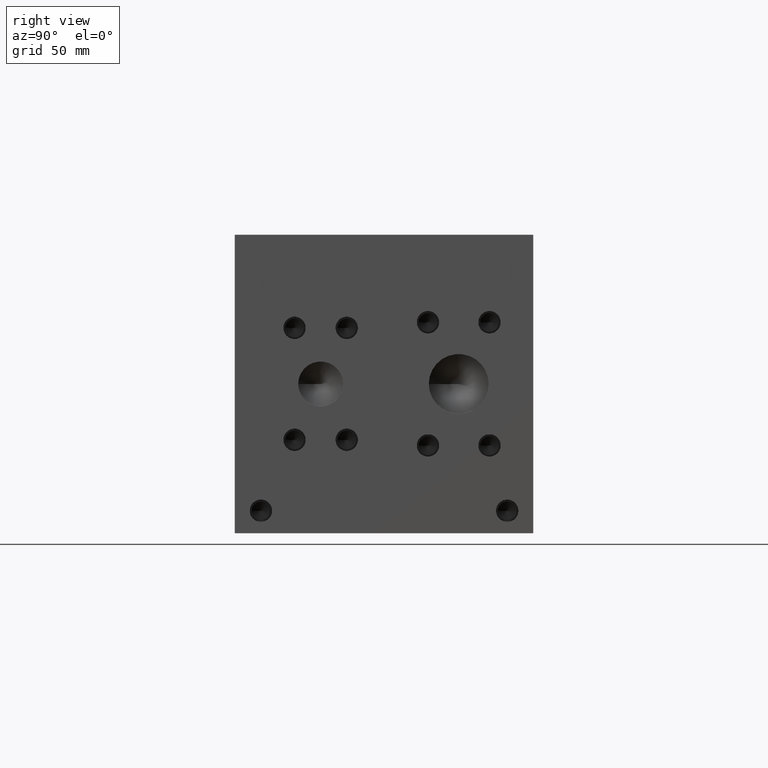
[diagram: clean part render]
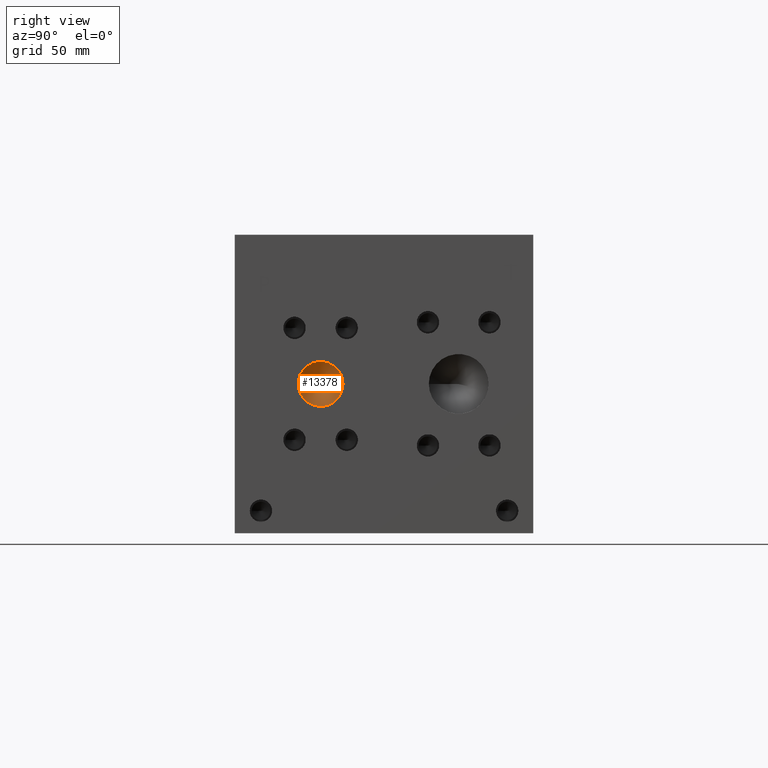
[diagram: same view with one face highlighted and labeled with its STEP entity id]
A machine part, right view. The second image highlights one B-rep face of the part: STEP entity #13378.
In plain terms, the highlighted conical surface has half-angle 60 deg.
Its self-contained STEP definition (entity closure, byte-faithful):
#125=CONICAL_SURFACE('',#14051,4.7625,1.0471975511966);
#287=CIRCLE('',#14052,9.525);
#288=CIRCLE('',#14053,9.525);
#1601=FACE_OUTER_BOUND('',#2395,.T.);
#2395=EDGE_LOOP('',(#11253,#11254,#11255,#11256));
#3698=LINE('',#22392,#4893);
#4893=VECTOR('',#16475,4.7625);
#6322=VERTEX_POINT('',#22388);
#6323=VERTEX_POINT('',#22389);
#6324=VERTEX_POINT('',#22391);
#8084=EDGE_CURVE('',#6322,#6323,#287,.T.);
#8085=EDGE_CURVE('',#6323,#6324,#3698,.T.);
#8086=EDGE_CURVE('',#6323,#6322,#288,.T.);
#11253=ORIENTED_EDGE('',*,*,#8084,.T.);
#11254=ORIENTED_EDGE('',*,*,#8085,.T.);
#11255=ORIENTED_EDGE('',*,*,#8085,.F.);
#11256=ORIENTED_EDGE('',*,*,#8086,.T.);
#13378=ADVANCED_FACE('',(#1601),#125,.F.);
#14051=AXIS2_PLACEMENT_3D('',#22387,#16471,#16472);
#14052=AXIS2_PLACEMENT_3D('',#22390,#16473,#16474);
#14053=AXIS2_PLACEMENT_3D('',#22393,#16476,#16477);
#16471=DIRECTION('center_axis',(1.,0.,0.));
#16472=DIRECTION('ref_axis',(0.,1.,0.));
#16473=DIRECTION('center_axis',(1.,0.,0.));
#16474=DIRECTION('ref_axis',(0.,1.,0.));
#16475=DIRECTION('',(-0.5,0.866025403784439,1.06057523872491E-16));
#16476=DIRECTION('center_axis',(1.,0.,0.));
#16477=DIRECTION('ref_axis',(0.,1.,0.));
#22387=CARTESIAN_POINT('Origin',(245.751109342984,36.5252,63.5));
#22388=CARTESIAN_POINT('',(248.50074,46.0502,63.5));
#22389=CARTESIAN_POINT('',(248.50074,27.0002,63.5));
#22390=CARTESIAN_POINT('Origin',(248.50074,36.5252,63.5));
#22391=CARTESIAN_POINT('',(243.001478685969,36.5252,63.5));
#22392=CARTESIAN_POINT('',(245.751109342984,31.7627,63.5));
#22393=CARTESIAN_POINT('Origin',(248.50074,36.5252,63.5));